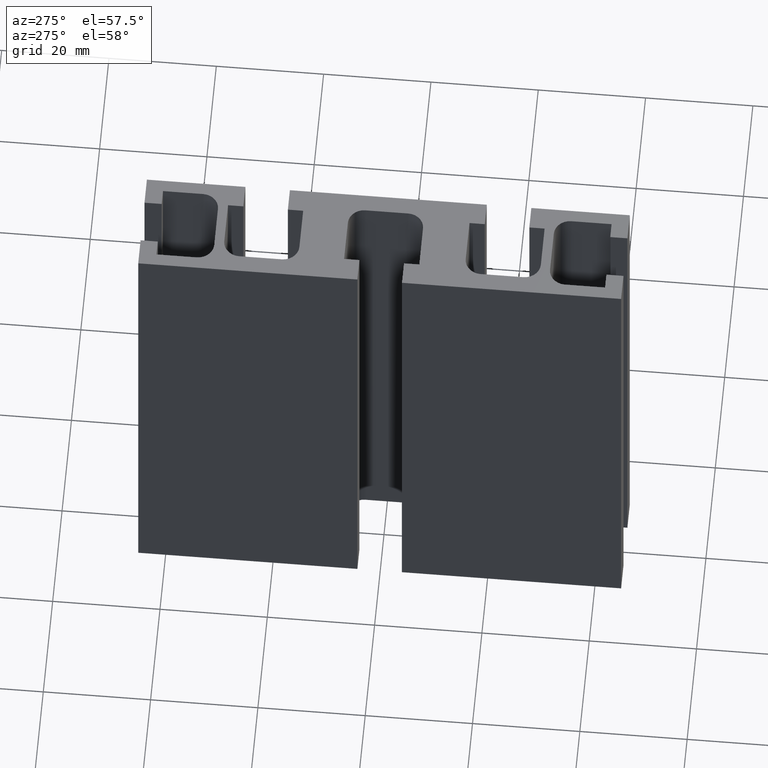
[diagram: clean part render]
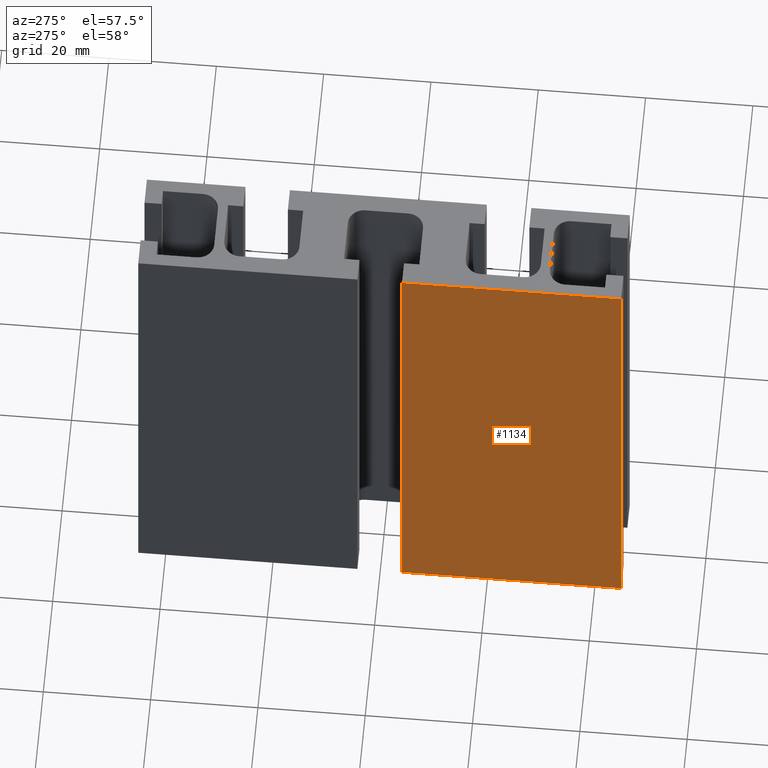
[diagram: same view with one face highlighted and labeled with its STEP entity id]
A machine part, auxiliary view. The second image highlights one B-rep face of the part: STEP entity #1134.
In plain terms, the highlighted planar face has unit normal (-1, -0, 0).
Its self-contained STEP definition (entity closure, byte-faithful):
#98=FACE_OUTER_BOUND('',#154,.T.);
#154=EDGE_LOOP('',(#923,#924,#925,#926));
#158=LINE('',#1517,#300);
#296=LINE('',#1832,#438);
#297=LINE('',#1834,#439);
#298=LINE('',#1835,#440);
#300=VECTOR('',#1220,100.);
#438=VECTOR('',#1502,100.);
#439=VECTOR('',#1505,40.8500000000001);
#440=VECTOR('',#1506,40.8500000000001);
#441=VERTEX_POINT('',#1513);
#443=VERTEX_POINT('',#1516);
#547=VERTEX_POINT('',#1828);
#548=VERTEX_POINT('',#1830);
#550=EDGE_CURVE('',#441,#443,#158,.T.);
#708=EDGE_CURVE('',#547,#548,#296,.T.);
#709=EDGE_CURVE('',#547,#441,#297,.T.);
#710=EDGE_CURVE('',#443,#548,#298,.T.);
#923=ORIENTED_EDGE('',*,*,#709,.F.);
#924=ORIENTED_EDGE('',*,*,#708,.T.);
#925=ORIENTED_EDGE('',*,*,#710,.F.);
#926=ORIENTED_EDGE('',*,*,#550,.F.);
#1078=PLANE('',#1212);
#1134=ADVANCED_FACE('',(#98),#1078,.T.);
#1212=AXIS2_PLACEMENT_3D('',#1833,#1503,#1504);
#1220=DIRECTION('',(0.,0.,1.));
#1502=DIRECTION('',(0.,0.,1.));
#1503=DIRECTION('center_axis',(-1.,-4.34848675495776E-16,0.));
#1504=DIRECTION('ref_axis',(3.5527136788005E-16,-1.,0.));
#1505=DIRECTION('',(-4.34848675495776E-16,1.,0.));
#1506=DIRECTION('',(4.34848675495776E-16,-1.,0.));
#1513=CARTESIAN_POINT('',(-9.24999999999992,-4.14999999999978,0.));
#1516=CARTESIAN_POINT('',(-9.24999999999992,-4.14999999999978,100.));
#1517=CARTESIAN_POINT('',(-9.24999999999992,-4.14999999999978,0.));
#1828=CARTESIAN_POINT('',(-9.24999999999991,-44.9999999999999,0.));
#1830=CARTESIAN_POINT('',(-9.24999999999991,-44.9999999999999,100.));
#1832=CARTESIAN_POINT('',(-9.24999999999991,-44.9999999999999,0.));
#1833=CARTESIAN_POINT('Origin',(-9.24999999999992,-4.14999999999978,0.));
#1834=CARTESIAN_POINT('',(-9.24999999999991,-44.9999999999999,0.));
#1835=CARTESIAN_POINT('',(-9.24999999999991,-44.9999999999999,100.));